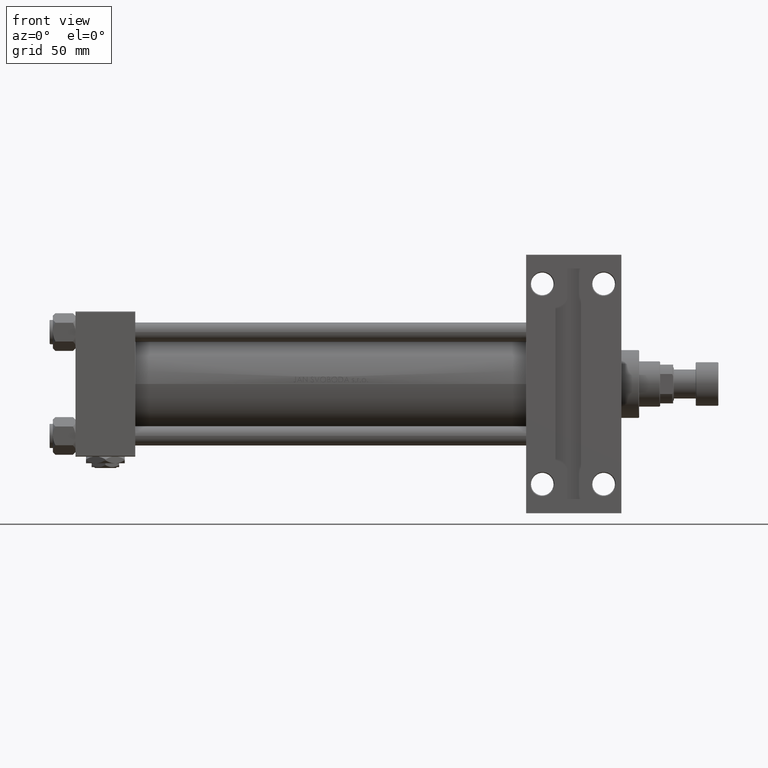
[diagram: clean part render]
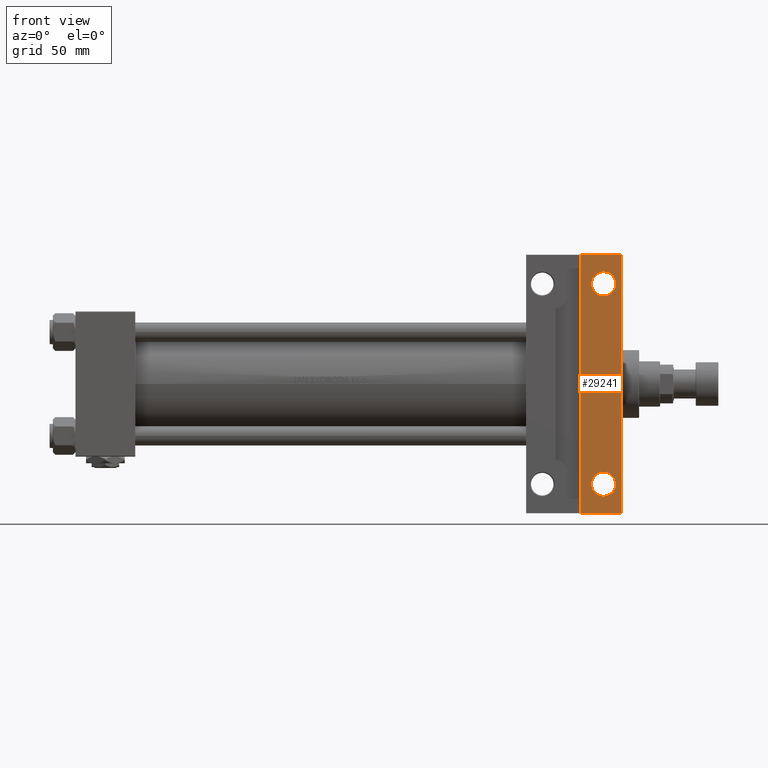
[diagram: same view with one face highlighted and labeled with its STEP entity id]
A machine part, front view. The second image highlights one B-rep face of the part: STEP entity #29241.
In plain terms, the highlighted planar face has unit normal (0, -1, 0).
Its self-contained STEP definition (entity closure, byte-faithful):
#888 = DIRECTION ( 'NONE',  ( -1.000000000000000000, 0.000000000000000000, 0.000000000000000000 ) ) ;
#1936 = CIRCLE ( 'NONE', #15689, 7.499499999999992284 ) ;
#3295 = EDGE_CURVE ( 'NONE', #26378, #20364, #15079, .T. ) ;
#3643 = AXIS2_PLACEMENT_3D ( 'NONE', #5433, #43355, #19720 ) ;
#4299 = LINE ( 'NONE', #19766, #45328 ) ;
#4986 = DIRECTION ( 'NONE',  ( -0.000000000000000000, -1.000000000000000000, -0.000000000000000000 ) ) ;
#5130 = ORIENTED_EDGE ( 'NONE', *, *, #48895, .T. ) ;
#5433 = CARTESIAN_POINT ( 'NONE',  ( 326.9999999999999432, 62.00000000000000000, -45.00000000000000000 ) ) ;
#5791 = DIRECTION ( 'NONE',  ( -1.000000000000000000, 0.000000000000000000, -0.000000000000000000 ) ) ;
#7996 = ORIENTED_EDGE ( 'NONE', *, *, #11811, .T. ) ;
#8508 = VERTEX_POINT ( 'NONE', #9022 ) ;
#8536 = LINE ( 'NONE', #24022, #25958 ) ;
#8740 = CARTESIAN_POINT ( 'NONE',  ( 319.5004999999999882, -62.00000000000000000, -45.00000000000000000 ) ) ;
#8893 = VECTOR ( 'NONE', #31752, 1000.000000000000000 ) ;
#8931 = VERTEX_POINT ( 'NONE', #22375 ) ;
#9022 = CARTESIAN_POINT ( 'NONE',  ( 312.9999999999999432, 79.99999999999995737, -45.00000000000000000 ) ) ;
#9105 = CARTESIAN_POINT ( 'NONE',  ( 337.9999999999999432, 79.99999999999998579, -45.00000000000000000 ) ) ;
#9397 = AXIS2_PLACEMENT_3D ( 'NONE', #44873, #17929, #29625 ) ;
#9476 = CARTESIAN_POINT ( 'NONE',  ( 326.9999999999999432, -62.00000000000000000, -45.00000000000000000 ) ) ;
#9997 = LINE ( 'NONE', #45787, #20350 ) ;
#10120 = EDGE_CURVE ( 'NONE', #16055, #8931, #4299, .T. ) ;
#11811 = EDGE_CURVE ( 'NONE', #8508, #16055, #32003, .T. ) ;
#12479 = ORIENTED_EDGE ( 'NONE', *, *, #21782, .F. ) ;
#13384 = PLANE ( 'NONE',  #15693 ) ;
#14720 = CARTESIAN_POINT ( 'NONE',  ( 312.9999999999999432, -79.99999999999997158, -45.00000000000000000 ) ) ;
#15079 = CIRCLE ( 'NONE', #9397, 7.499499999999992284 ) ;
#15245 = ORIENTED_EDGE ( 'NONE', *, *, #32907, .T. ) ;
#15689 = AXIS2_PLACEMENT_3D ( 'NONE', #9476, #20143, #888 ) ;
#15693 = AXIS2_PLACEMENT_3D ( 'NONE', #28891, #44384, #5791 ) ;
#16055 = VERTEX_POINT ( 'NONE', #9105 ) ;
#16255 = CARTESIAN_POINT ( 'NONE',  ( 278.9999999999999432, 79.99999999999995737, -45.00000000000000000 ) ) ;
#17803 = AXIS2_PLACEMENT_3D ( 'NONE', #40601, #36293, #47712 ) ;
#17929 = DIRECTION ( 'NONE',  ( -0.000000000000000000, -0.000000000000000000, 1.000000000000000000 ) ) ;
#18289 = EDGE_LOOP ( 'NONE', ( #12479, #7996, #25725, #5130 ) ) ;
#18817 = CARTESIAN_POINT ( 'NONE',  ( 334.4994999999999550, 62.00000000000000000, -45.00000000000000000 ) ) ;
#18924 = ORIENTED_EDGE ( 'NONE', *, *, #45289, .T. ) ;
#19720 = DIRECTION ( 'NONE',  ( -1.000000000000000000, 0.000000000000000000, 0.000000000000000000 ) ) ;
#19766 = CARTESIAN_POINT ( 'NONE',  ( 337.9999999999999432, 45.00000000000001421, -45.00000000000000000 ) ) ;
#20143 = DIRECTION ( 'NONE',  ( -0.000000000000000000, -0.000000000000000000, 1.000000000000000000 ) ) ;
#20350 = VECTOR ( 'NONE', #49334, 1000.000000000000000 ) ;
#20364 = VERTEX_POINT ( 'NONE', #18817 ) ;
#21782 = EDGE_CURVE ( 'NONE', #8508, #34656, #8536, .T. ) ;
#22375 = CARTESIAN_POINT ( 'NONE',  ( 337.9999999999999432, -80.00000000000004263, -45.00000000000000000 ) ) ;
#24022 = CARTESIAN_POINT ( 'NONE',  ( 312.9999999999999432, -79.99999999999997158, -45.00000000000000000 ) ) ;
#24822 = EDGE_LOOP ( 'NONE', ( #41568, #44991 ) ) ;
#24868 = VERTEX_POINT ( 'NONE', #36327 ) ;
#25725 = ORIENTED_EDGE ( 'NONE', *, *, #10120, .T. ) ;
#25944 = CIRCLE ( 'NONE', #17803, 7.499499999999992284 ) ;
#25958 = VECTOR ( 'NONE', #4986, 1000.000000000000000 ) ;
#26378 = VERTEX_POINT ( 'NONE', #29493 ) ;
#28891 = CARTESIAN_POINT ( 'NONE',  ( 337.9999999999999432, 45.00000000000001421, -45.00000000000000000 ) ) ;
#29241 = ADVANCED_FACE ( 'NONE', ( #32692, #40568, #48184 ), #13384, .T. ) ;
#29493 = CARTESIAN_POINT ( 'NONE',  ( 319.5004999999999882, 62.00000000000000000, -45.00000000000000000 ) ) ;
#29625 = DIRECTION ( 'NONE',  ( -1.000000000000000000, 0.000000000000000000, 0.000000000000000000 ) ) ;
#31752 = DIRECTION ( 'NONE',  ( 1.000000000000000000, 4.704334850106595794E-16, 0.000000000000000000 ) ) ;
#32003 = LINE ( 'NONE', #16255, #8893 ) ;
#32692 = FACE_OUTER_BOUND ( 'NONE', #18289, .T. ) ;
#32704 = EDGE_LOOP ( 'NONE', ( #18924, #15245 ) ) ;
#32907 = EDGE_CURVE ( 'NONE', #24868, #42151, #1936, .T. ) ;
#34656 = VERTEX_POINT ( 'NONE', #14720 ) ;
#35259 = EDGE_CURVE ( 'NONE', #20364, #26378, #47414, .T. ) ;
#35273 = DIRECTION ( 'NONE',  ( 0.000000000000000000, -1.000000000000000000, 0.000000000000000000 ) ) ;
#36293 = DIRECTION ( 'NONE',  ( -0.000000000000000000, -0.000000000000000000, 1.000000000000000000 ) ) ;
#36327 = CARTESIAN_POINT ( 'NONE',  ( 334.4994999999999550, -62.00000000000000000, -45.00000000000000000 ) ) ;
#40568 = FACE_BOUND ( 'NONE', #32704, .T. ) ;
#40601 = CARTESIAN_POINT ( 'NONE',  ( 326.9999999999999432, -62.00000000000000000, -45.00000000000000000 ) ) ;
#41568 = ORIENTED_EDGE ( 'NONE', *, *, #3295, .T. ) ;
#42151 = VERTEX_POINT ( 'NONE', #8740 ) ;
#43355 = DIRECTION ( 'NONE',  ( -0.000000000000000000, -0.000000000000000000, 1.000000000000000000 ) ) ;
#44384 = DIRECTION ( 'NONE',  ( 0.000000000000000000, 0.000000000000000000, -1.000000000000000000 ) ) ;
#44873 = CARTESIAN_POINT ( 'NONE',  ( 326.9999999999999432, 62.00000000000000000, -45.00000000000000000 ) ) ;
#44991 = ORIENTED_EDGE ( 'NONE', *, *, #35259, .T. ) ;
#45289 = EDGE_CURVE ( 'NONE', #42151, #24868, #25944, .T. ) ;
#45328 = VECTOR ( 'NONE', #35273, 1000.000000000000000 ) ;
#45787 = CARTESIAN_POINT ( 'NONE',  ( 278.9999999999999432, -80.00000000000001421, -45.00000000000000000 ) ) ;
#47414 = CIRCLE ( 'NONE', #3643, 7.499499999999992284 ) ;
#47712 = DIRECTION ( 'NONE',  ( -1.000000000000000000, 0.000000000000000000, 0.000000000000000000 ) ) ;
#48184 = FACE_BOUND ( 'NONE', #24822, .T. ) ;
#48895 = EDGE_CURVE ( 'NONE', #8931, #34656, #9997, .T. ) ;
#49334 = DIRECTION ( 'NONE',  ( -1.000000000000000000, 4.704334850106595794E-16, -0.000000000000000000 ) ) ;